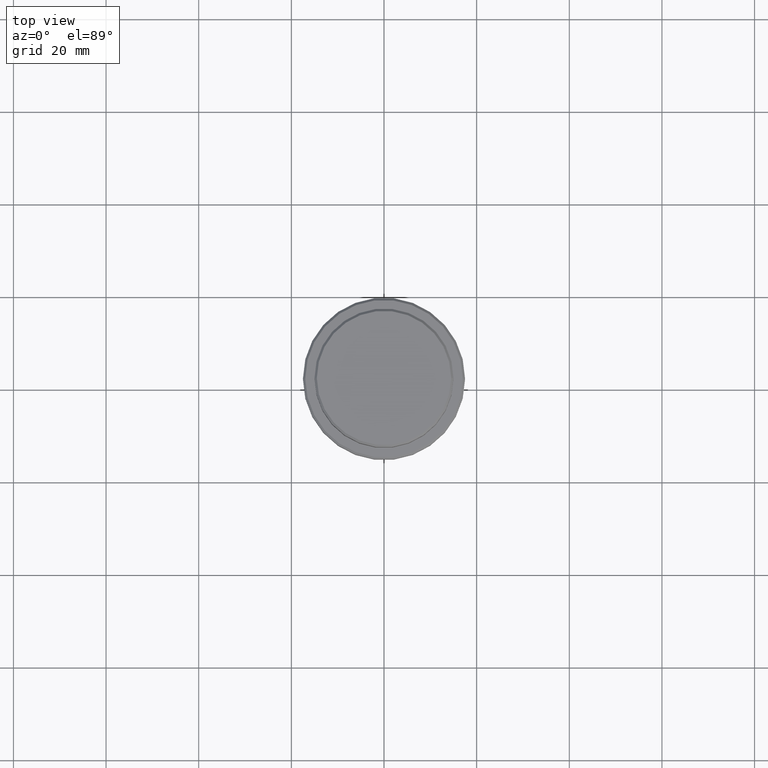
[diagram: clean part render]
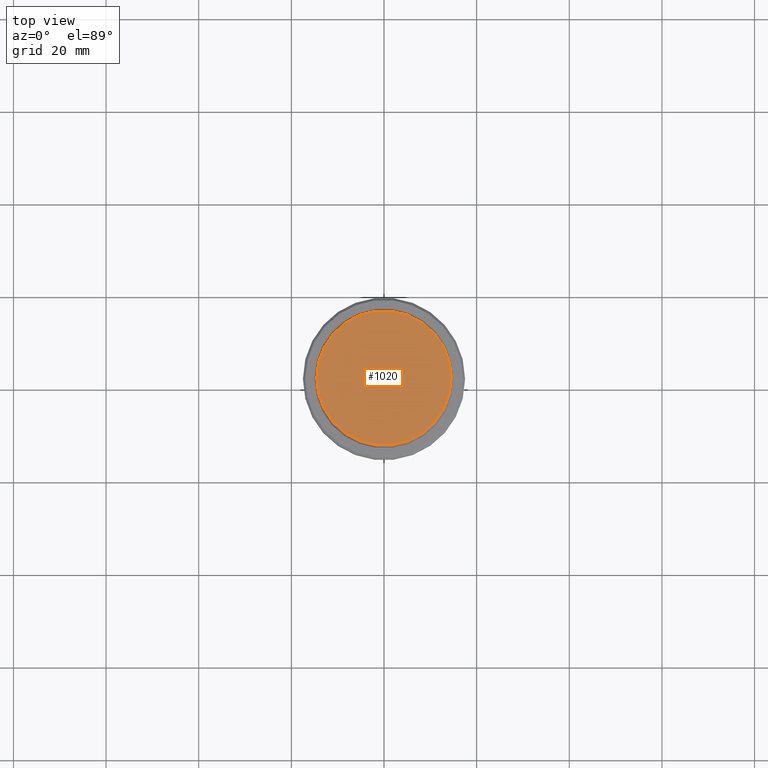
[diagram: same view with one face highlighted and labeled with its STEP entity id]
A machine part, top view. The second image highlights one B-rep face of the part: STEP entity #1020.
In plain terms, the highlighted planar face has unit normal (0, -0, 1).
Its self-contained STEP definition (entity closure, byte-faithful):
#89 = CARTESIAN_POINT ( 'NONE',  ( 14.49999999999999645, 1.806354028742345802E-15, 0.000000000000000000 ) ) ;
#144 = ORIENTED_EDGE ( 'NONE', *, *, #627, .T. ) ;
#156 = DIRECTION ( 'NONE',  ( 1.000000000000000000, 0.000000000000000000, 0.000000000000000000 ) ) ;
#164 = EDGE_CURVE ( 'NONE', #566, #1064, #916, .T. ) ;
#260 = CARTESIAN_POINT ( 'NONE',  ( 0.000000000000000000, 0.000000000000000000, 0.000000000000000000 ) ) ;
#316 = CARTESIAN_POINT ( 'NONE',  ( 0.000000000000000000, 0.000000000000000000, 0.000000000000000000 ) ) ;
#330 = DIRECTION ( 'NONE',  ( -0.000000000000000000, -0.000000000000000000, 1.000000000000000000 ) ) ;
#432 = CARTESIAN_POINT ( 'NONE',  ( 0.000000000000000000, 0.000000000000000000, 0.000000000000000000 ) ) ;
#447 = CARTESIAN_POINT ( 'NONE',  ( -14.49999999999999645, 0.000000000000000000, 0.000000000000000000 ) ) ;
#466 = CIRCLE ( 'NONE', #651, 14.49999999999999645 ) ;
#485 = DIRECTION ( 'NONE',  ( 1.000000000000000000, 0.000000000000000000, 0.000000000000000000 ) ) ;
#490 = DIRECTION ( 'NONE',  ( -0.000000000000000000, -0.000000000000000000, 1.000000000000000000 ) ) ;
#566 = VERTEX_POINT ( 'NONE', #447 ) ;
#627 = EDGE_CURVE ( 'NONE', #1064, #566, #466, .T. ) ;
#651 = AXIS2_PLACEMENT_3D ( 'NONE', #260, #490, #156 ) ;
#704 = AXIS2_PLACEMENT_3D ( 'NONE', #316, #750, #485 ) ;
#750 = DIRECTION ( 'NONE',  ( 0.000000000000000000, -0.000000000000000000, 1.000000000000000000 ) ) ;
#761 = DIRECTION ( 'NONE',  ( 1.000000000000000000, 0.000000000000000000, 0.000000000000000000 ) ) ;
#848 = FACE_OUTER_BOUND ( 'NONE', #1241, .T. ) ;
#853 = AXIS2_PLACEMENT_3D ( 'NONE', #432, #330, #761 ) ;
#916 = CIRCLE ( 'NONE', #853, 14.49999999999999645 ) ;
#1020 = ADVANCED_FACE ( 'NONE', ( #848 ), #1289, .T. ) ;
#1064 = VERTEX_POINT ( 'NONE', #89 ) ;
#1241 = EDGE_LOOP ( 'NONE', ( #1342, #144 ) ) ;
#1289 = PLANE ( 'NONE',  #704 ) ;
#1342 = ORIENTED_EDGE ( 'NONE', *, *, #164, .T. ) ;